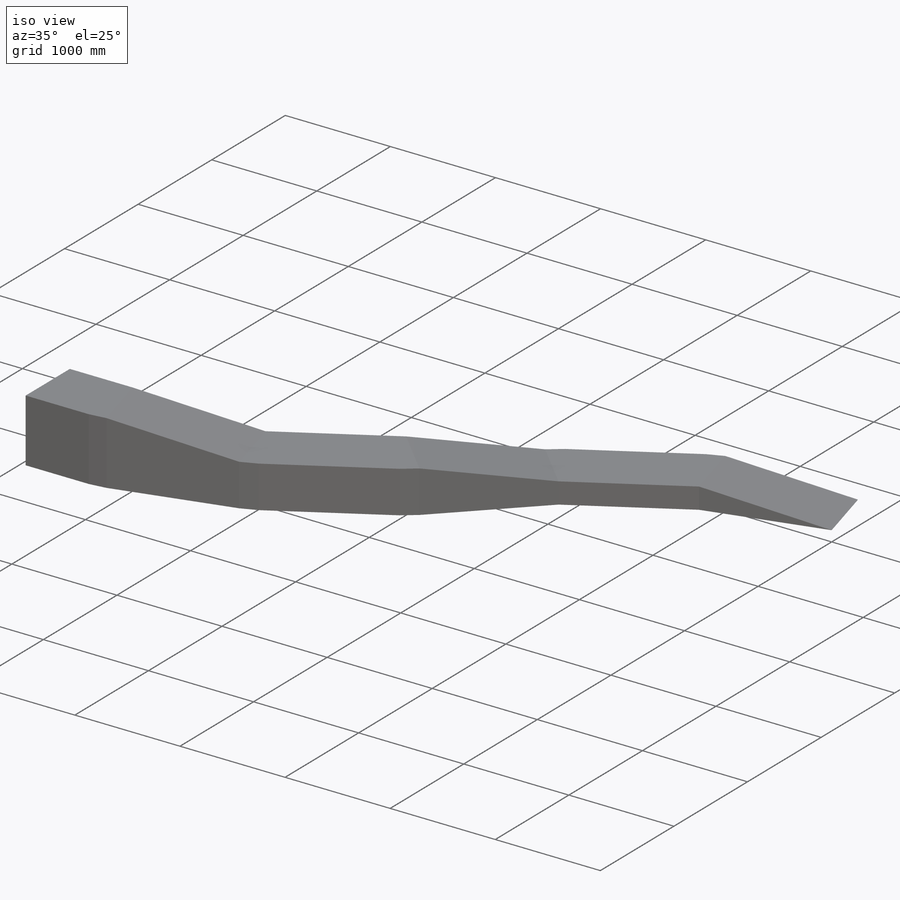
[diagram: iso view]
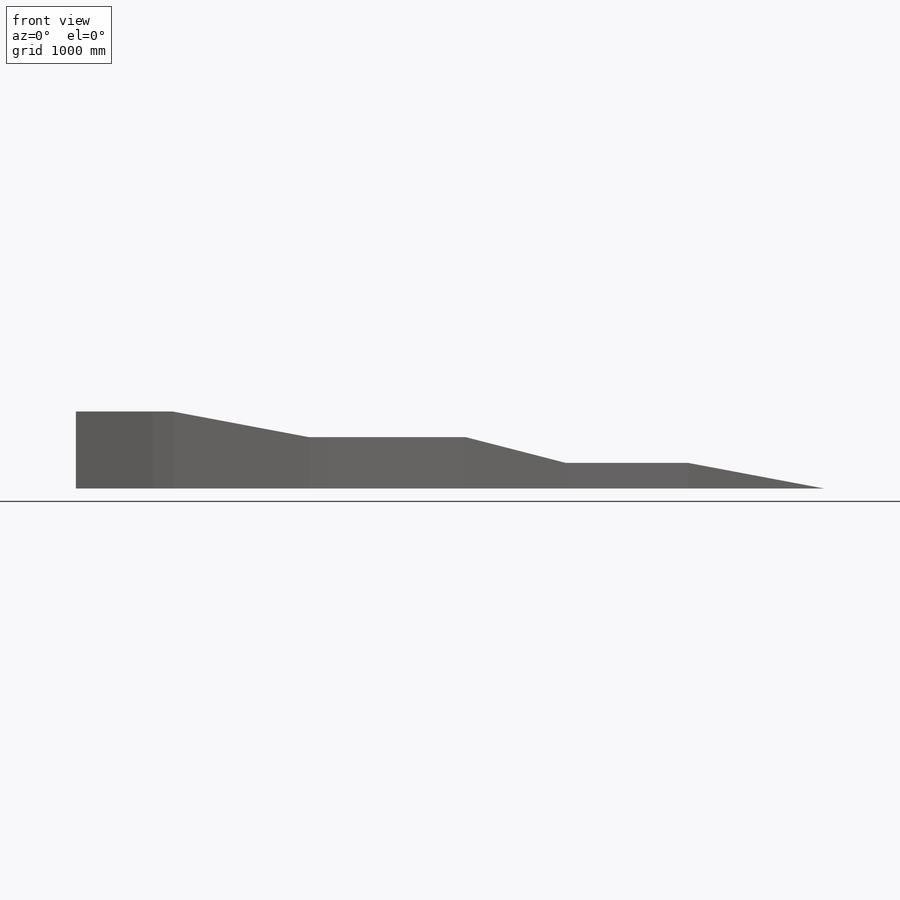
[diagram: front view]
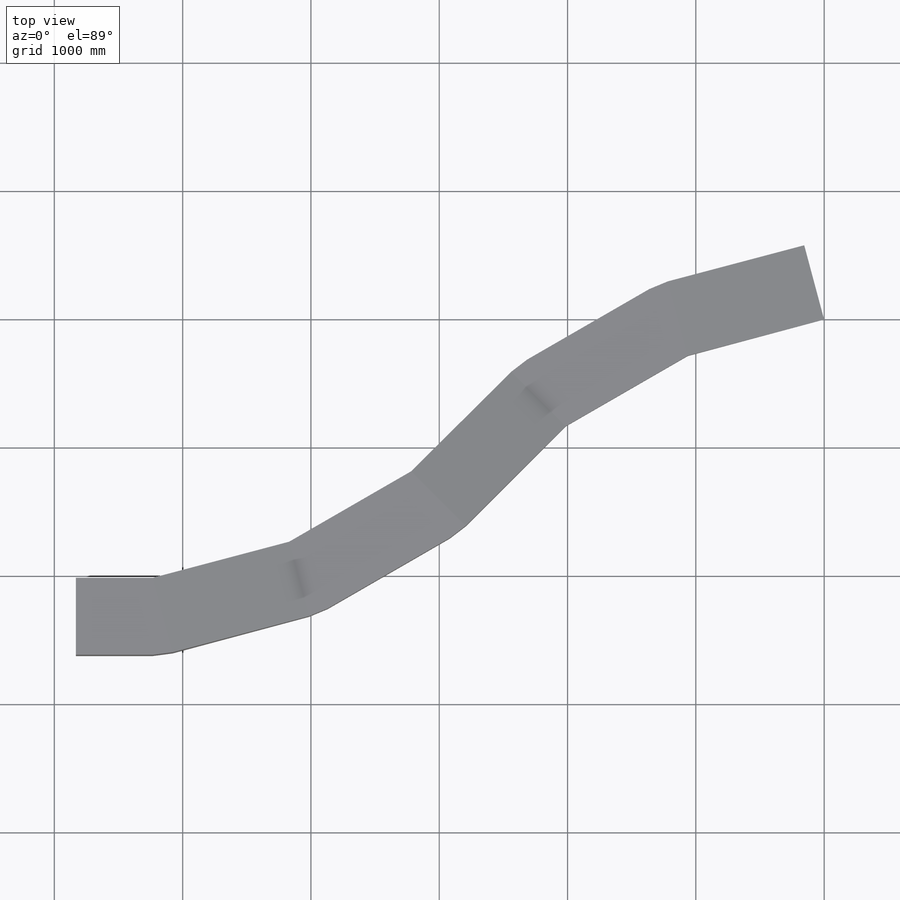
[diagram: top view]
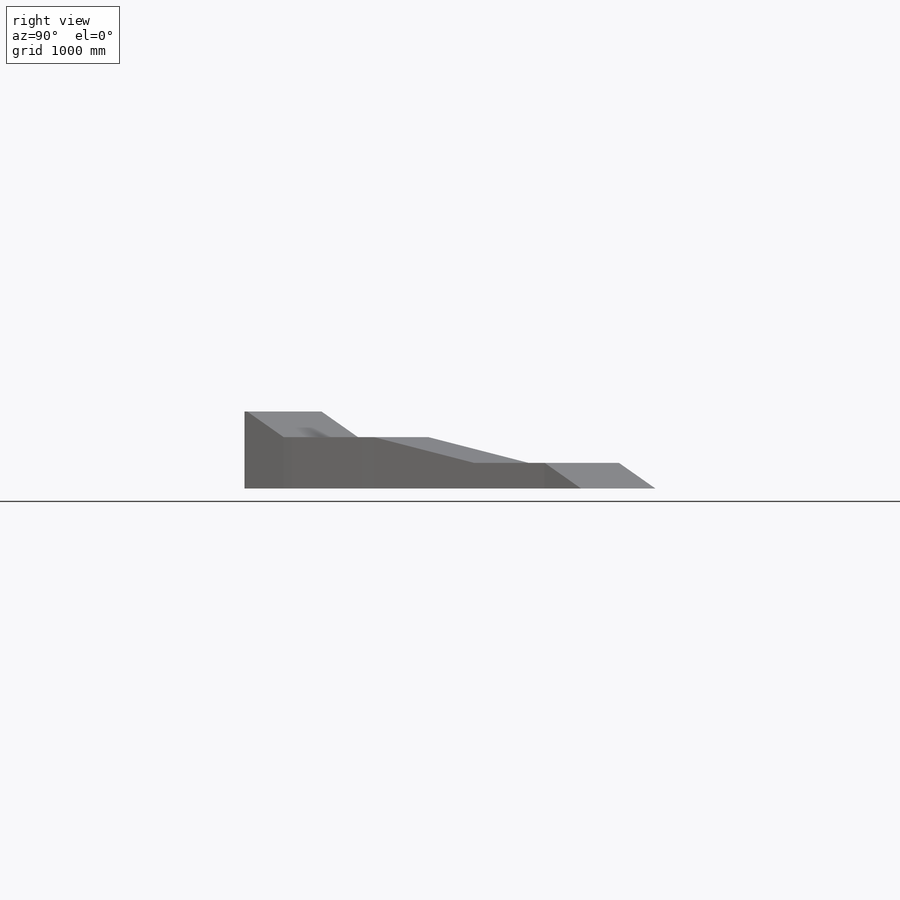
[diagram: right view]
SOLIDWORKS PART (.sldprt)
format: sldprt  version: not decoded by parser v0  size: 278,016 bytes
history: native  units: mm
features: sketch x9, cut_extrude x7, material x1, extrude x1, plane x1 (+13 scaffold rows collapsed)
feature tree (32):
  scaffold x13  (default folders/planes/origin — collapsed)
  material  "Material <not specified>"
  sketch  "Sketch1"  dims[c1.D1=1100.0mm c2.D1=165.0deg c3.D1=600.0mm c4.D1=105.0deg c5.D1=1100.0mm c6.D1=150.0deg c7.D1=1100.0mm c8.D1=150.0deg c9.D1=1100.0mm c10.D1=135.0deg c11.D1=1100.0mm c12.D1=135.0deg c13.D1=1100.0mm c14.D1=0.0deg]
  extrude  "Boss-Extrude1"  Depth=600mm
  sketch  "Sketch9"
  cut_extrude  "Cut-Extrude1"  Depth=600mm
  sketch  "Sketch10"  dims[D1=200.0mm]
  cut_extrude  "Cut-Extrude2"  Depth=600mm
  sketch  "Sketch11"
  cut_extrude  "Cut-Extrude3"  Depth=400mm
  sketch  "Sketch12"  dims[D1=200.0mm]
  cut_extrude  "Cut-Extrude4"  Depth=600mm
  sketch  "Sketch13"
  cut_extrude  "Cut-Extrude5"  Depth=200mm
  sketch  "Sketch14"
  cut_extrude  "Cut-Extrude6"  Depth=6000mm
  sketch  "Sketch15"  dims[D1=600.0mm]
  plane  "Plane1"
  sketch  "Sketch16"
  cut_extrude  "Cut-Extrude7"  Depth=1000mm
decode coverage: 12 of 17 modeling features carry decoded parameters
note: suppression state not decoded; provenance and decode notes live in map.json
